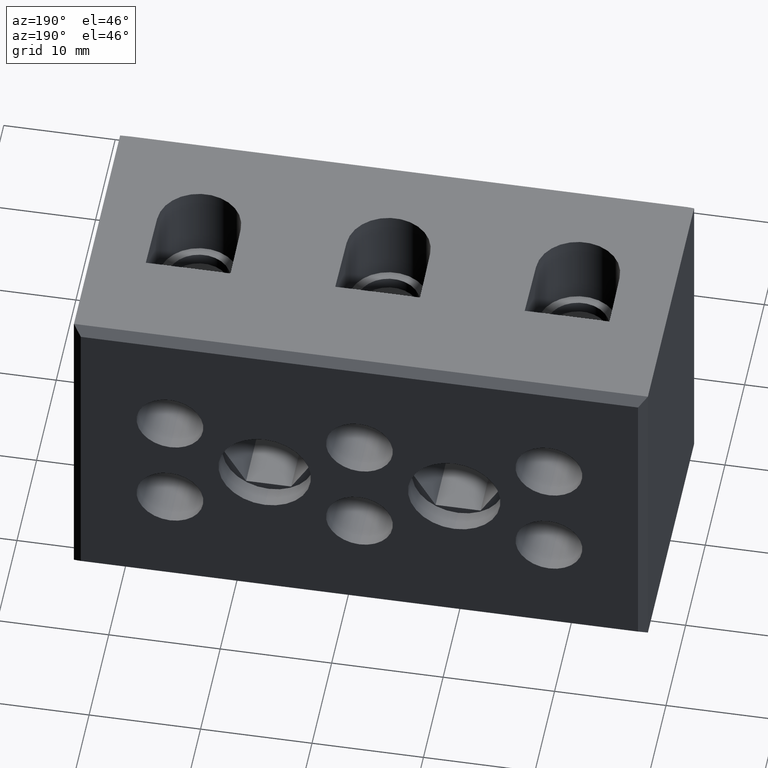
[diagram: clean part render]
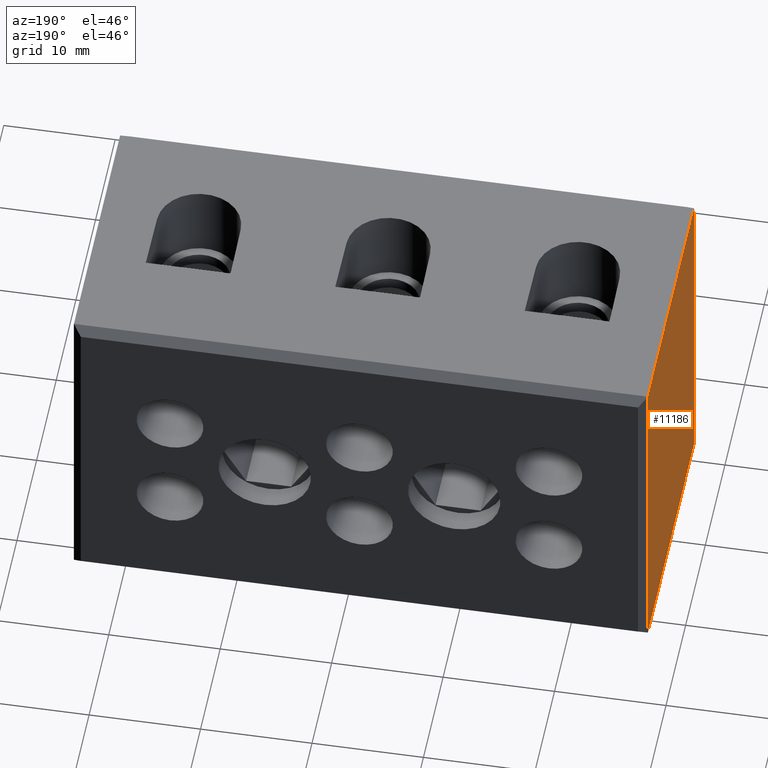
[diagram: same view with one face highlighted and labeled with its STEP entity id]
A machine part, auxiliary view. The second image highlights one B-rep face of the part: STEP entity #11186.
In plain terms, the highlighted planar face has unit normal (-1, 0, 0).
Its self-contained STEP definition (entity closure, byte-faithful):
#125 = EDGE_LOOP ( 'NONE', ( #5937, #5914, #5924, #5881 ) ) ;
#786 = VERTEX_POINT ( 'NONE', #7379 ) ;
#796 = VERTEX_POINT ( 'NONE', #7384 ) ;
#802 = VERTEX_POINT ( 'NONE', #7349 ) ;
#870 = VERTEX_POINT ( 'NONE', #7414 ) ;
#4291 = FACE_OUTER_BOUND ( 'NONE', #125, .T. ) ;
#4304 = PLANE ( 'NONE',  #5454 ) ;
#4307 = CARTESIAN_POINT ( 'NONE',  ( 352.9658352908286400, 315.1299441412573400, 0.7499999999999797900 ) ) ;
#4308 = DIRECTION ( 'NONE',  ( -1.000000000000000000, 0.0000000000000000000, 0.0000000000000000000 ) ) ;
#4309 = DIRECTION ( 'NONE',  ( 0.0000000000000000000, 0.0000000000000000000, 1.000000000000000000 ) ) ;
#5454 = AXIS2_PLACEMENT_3D ( 'NONE', #4307, #4308, #4309 ) ;
#5881 = ORIENTED_EDGE ( 'NONE', *, *, #8631, .F. ) ;
#5914 = ORIENTED_EDGE ( 'NONE', *, *, #8594, .T. ) ;
#5924 = ORIENTED_EDGE ( 'NONE', *, *, #8650, .F. ) ;
#5937 = ORIENTED_EDGE ( 'NONE', *, *, #8549, .F. ) ;
#7349 = CARTESIAN_POINT ( 'NONE',  ( 352.9658352908285800, 328.8799441412574000, -2.898207932325314000E-014 ) ) ;
#7379 = CARTESIAN_POINT ( 'NONE',  ( 352.9658352908285800, 352.3799441412573400, -3.919390853535098500E-014 ) ) ;
#7384 = CARTESIAN_POINT ( 'NONE',  ( 352.9658352908285800, 352.3799441412573400, 30.00000000000002800 ) ) ;
#7414 = CARTESIAN_POINT ( 'NONE',  ( 352.9658352908285800, 328.8799441412574000, 30.00000000000002800 ) ) ;
#7737 = LINE ( 'NONE', #7747, #12360 ) ;
#7747 = CARTESIAN_POINT ( 'NONE',  ( 352.9658352908286400, 315.1299441412573400, 30.00000000000002500 ) ) ;
#8549 = EDGE_CURVE ( 'NONE', #796, #870, #7737, .T. ) ;
#8594 = EDGE_CURVE ( 'NONE', #796, #786, #11334, .T. ) ;
#8631 = EDGE_CURVE ( 'NONE', #870, #802, #11443, .T. ) ;
#8650 = EDGE_CURVE ( 'NONE', #802, #786, #11498, .T. ) ;
#11186 = ADVANCED_FACE ( 'NONE', ( #4291 ), #4304, .T. ) ;
#11308 = DIRECTION ( 'NONE',  ( -0.0000000000000000000, -0.0000000000000000000, -1.000000000000000000 ) ) ;
#11317 = CARTESIAN_POINT ( 'NONE',  ( 352.9658352908286400, 352.3799441412573400, 0.7499999999999797900 ) ) ;
#11334 = LINE ( 'NONE', #11317, #12410 ) ;
#11443 = LINE ( 'NONE', #11474, #12480 ) ;
#11474 = CARTESIAN_POINT ( 'NONE',  ( 352.9658352908285800, 328.8799441412574000, 30.00000000000000000 ) ) ;
#11477 = DIRECTION ( 'NONE',  ( -0.0000000000000000000, -0.0000000000000000000, -1.000000000000000000 ) ) ;
#11497 = DIRECTION ( 'NONE',  ( 0.0000000000000000000, 1.000000000000000000, 0.0000000000000000000 ) ) ;
#11498 = LINE ( 'NONE', #11522, #12474 ) ;
#11522 = CARTESIAN_POINT ( 'NONE',  ( 352.9658352908286400, 315.1299441412573400, -2.016616040823038200E-014 ) ) ;
#12030 = DIRECTION ( 'NONE',  ( 0.0000000000000000000, -1.000000000000000000, -0.0000000000000000000 ) ) ;
#12360 = VECTOR ( 'NONE', #12030, 1000.000000000000000 ) ;
#12410 = VECTOR ( 'NONE', #11308, 1000.000000000000000 ) ;
#12474 = VECTOR ( 'NONE', #11497, 1000.000000000000000 ) ;
#12480 = VECTOR ( 'NONE', #11477, 1000.000000000000000 ) ;